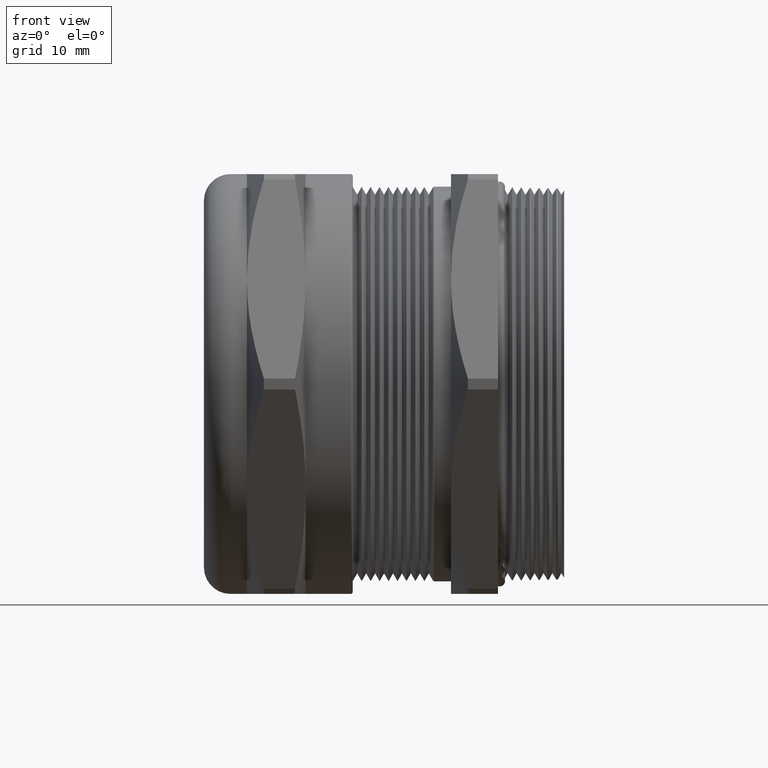
[diagram: clean part render]
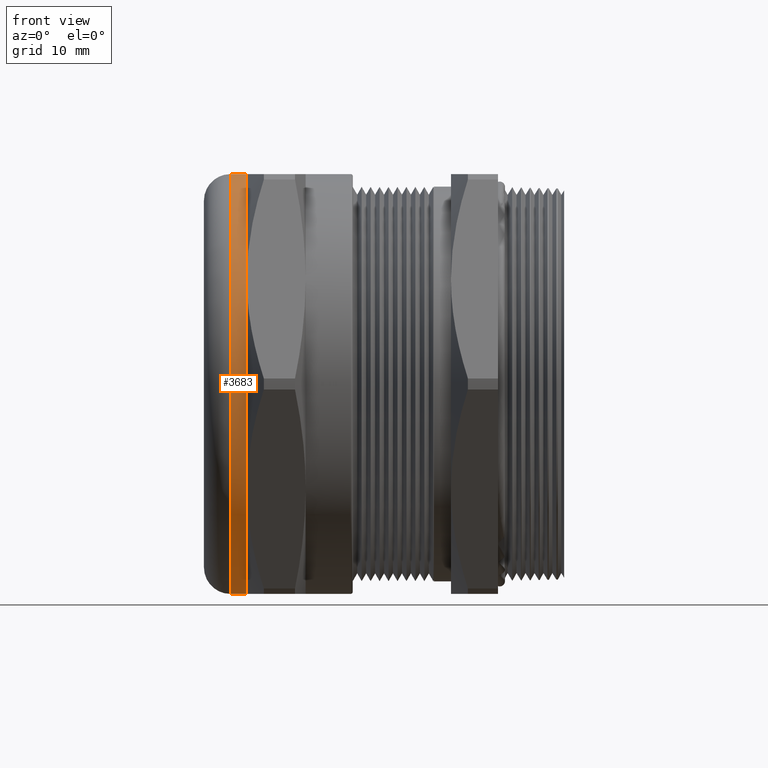
[diagram: same view with one face highlighted and labeled with its STEP entity id]
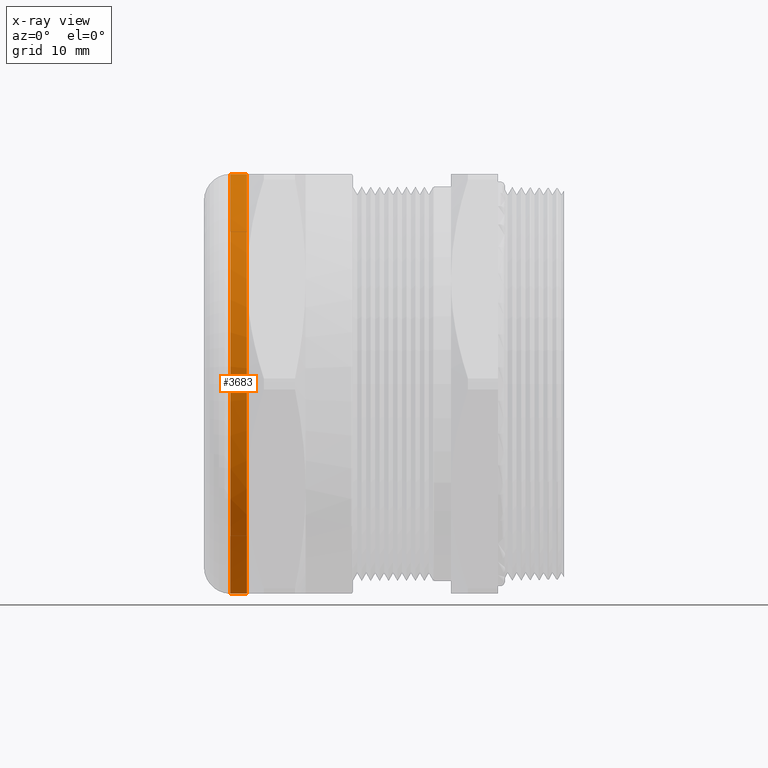
[diagram: x-ray of the same camera — body ghosted, the highlighted face saturated]
A machine part, front view. The second image highlights one B-rep face of the part: STEP entity #3683.
The next image is the same camera in x-ray: the body ghosted, the highlighted face saturated — about 0% of this face is hidden behind the body in this view.
In plain terms, the highlighted cylindrical surface (partial cylindrical patch) has radius 25.019 mm, axis along (-1, 0, 0).
Its self-contained STEP definition (entity closure, byte-faithful):
#1106 = CARTESIAN_POINT ( 'NONE',  ( -0.6434999999999998500, 0.0000000000000000000, 0.9850000000000001000 ) ) ;
#1153 = CARTESIAN_POINT ( 'NONE',  ( -0.6434999999999998500, 0.0000000000000000000, -0.9849999999999997600 ) ) ;
#1207 = DIRECTION ( 'NONE',  ( -1.000000000000000000, 0.0000000000000000000, 0.0000000000000000000 ) ) ;
#1208 = VECTOR ( 'NONE', #1207, 39.37007874015748100 ) ;
#1209 = CARTESIAN_POINT ( 'NONE',  ( -2.719493435091831800, 0.0000000000000000000, 0.9849999999999999900 ) ) ;
#1210 = LINE ( 'NONE', #1209, #1208 ) ;
#1211 = DIRECTION ( 'NONE',  ( -1.000000000000000000, 0.0000000000000000000, 0.0000000000000000000 ) ) ;
#1212 = VECTOR ( 'NONE', #1211, 39.37007874015748100 ) ;
#1213 = CARTESIAN_POINT ( 'NONE',  ( -2.719493435091831800, 1.206277097160143100E-016, -0.9849999999999999900 ) ) ;
#1214 = LINE ( 'NONE', #1213, #1212 ) ;
#1286 = DIRECTION ( 'NONE',  ( 0.0000000000000000000, 0.0000000000000000000, 1.000000000000000000 ) ) ;
#1287 = DIRECTION ( 'NONE',  ( -1.000000000000000000, 0.0000000000000000000, 0.0000000000000000000 ) ) ;
#1288 = AXIS2_PLACEMENT_3D ( 'NONE', #1296, #1287, #1286 ) ;
#1290 = CYLINDRICAL_SURFACE ( 'NONE', #1288, 0.9849999999999999900 ) ;
#1291 = FACE_OUTER_BOUND ( 'NONE', #3681, .T. ) ;
#1296 = CARTESIAN_POINT ( 'NONE',  ( -2.719493435091831800, 0.0000000000000000000, 0.0000000000000000000 ) ) ;
#1310 = CIRCLE ( 'NONE', #1373, 0.9849999999999999900 ) ;
#1349 = DIRECTION ( 'NONE',  ( 0.0000000000000000000, 0.0000000000000000000, 1.000000000000000000 ) ) ;
#1350 = DIRECTION ( 'NONE',  ( -1.000000000000000000, 0.0000000000000000000, 0.0000000000000000000 ) ) ;
#1351 = CARTESIAN_POINT ( 'NONE',  ( -0.6434999999999998500, 0.0000000000000000000, 0.0000000000000000000 ) ) ;
#1352 = AXIS2_PLACEMENT_3D ( 'NONE', #1351, #1350, #1349 ) ;
#1353 = CIRCLE ( 'NONE', #1352, 0.9849999999999999900 ) ;
#1354 = DIRECTION ( 'NONE',  ( 0.0000000000000000000, 0.0000000000000000000, 1.000000000000000000 ) ) ;
#1355 = DIRECTION ( 'NONE',  ( -1.000000000000000000, 0.0000000000000000000, 0.0000000000000000000 ) ) ;
#1356 = CARTESIAN_POINT ( 'NONE',  ( -0.6434999999999998500, 0.0000000000000000000, 0.0000000000000000000 ) ) ;
#1357 = AXIS2_PLACEMENT_3D ( 'NONE', #1356, #1355, #1354 ) ;
#1362 = CIRCLE ( 'NONE', #1357, 0.9849999999999999900 ) ;
#1365 = DIRECTION ( 'NONE',  ( 0.0000000000000000000, 0.0000000000000000000, 1.000000000000000000 ) ) ;
#1366 = DIRECTION ( 'NONE',  ( -1.000000000000000000, 0.0000000000000000000, 0.0000000000000000000 ) ) ;
#1367 = CARTESIAN_POINT ( 'NONE',  ( -0.6434999999999998500, 0.0000000000000000000, 0.0000000000000000000 ) ) ;
#1368 = AXIS2_PLACEMENT_3D ( 'NONE', #1367, #1366, #1365 ) ;
#1369 = CIRCLE ( 'NONE', #1368, 0.9849999999999999900 ) ;
#1370 = DIRECTION ( 'NONE',  ( 0.0000000000000000000, 0.0000000000000000000, -1.000000000000000000 ) ) ;
#1371 = DIRECTION ( 'NONE',  ( 1.000000000000000000, 0.0000000000000000000, 0.0000000000000000000 ) ) ;
#1372 = CARTESIAN_POINT ( 'NONE',  ( -0.7207999999999998900, 0.0000000000000000000, 0.0000000000000000000 ) ) ;
#1373 = AXIS2_PLACEMENT_3D ( 'NONE', #1372, #1371, #1370 ) ;
#1760 = CARTESIAN_POINT ( 'NONE',  ( -0.7207999999999998900, 0.0000000000000000000, 0.9849999999999999900 ) ) ;
#1766 = CARTESIAN_POINT ( 'NONE',  ( -0.7207999999999998900, 1.206277097160143100E-016, -0.9849999999999999900 ) ) ;
#2349 = CARTESIAN_POINT ( 'NONE',  ( -0.6434999999999998500, -0.8530350227276722900, -0.4925000000000004400 ) ) ;
#2452 = CARTESIAN_POINT ( 'NONE',  ( -0.6434999999999998500, -0.8530350227276718400, 0.4925000000000001600 ) ) ;
#3329 = VERTEX_POINT ( 'NONE', #1106 ) ;
#3385 = VERTEX_POINT ( 'NONE', #1153 ) ;
#3387 = EDGE_CURVE ( 'NONE', #3385, #3949, #1214, .T. ) ;
#3390 = EDGE_CURVE ( 'NONE', #3329, #3953, #1210, .T. ) ;
#3679 = ORIENTED_EDGE ( 'NONE', *, *, #3719, .T. ) ;
#3681 = EDGE_LOOP ( 'NONE', ( #3684, #3679, #3718, #3714, #3711, #3715 ) ) ;
#3683 = ADVANCED_FACE ( 'NONE', ( #1291 ), #1290, .T. ) ;
#3684 = ORIENTED_EDGE ( 'NONE', *, *, #3387, .F. ) ;
#3711 = ORIENTED_EDGE ( 'NONE', *, *, #3390, .T. ) ;
#3712 = EDGE_CURVE ( 'NONE', #3953, #3949, #1310, .T. ) ;
#3713 = EDGE_CURVE ( 'NONE', #4337, #3329, #1369, .T. ) ;
#3714 = ORIENTED_EDGE ( 'NONE', *, *, #3713, .T. ) ;
#3715 = ORIENTED_EDGE ( 'NONE', *, *, #3712, .T. ) ;
#3717 = EDGE_CURVE ( 'NONE', #4311, #4337, #1362, .T. ) ;
#3718 = ORIENTED_EDGE ( 'NONE', *, *, #3717, .T. ) ;
#3719 = EDGE_CURVE ( 'NONE', #3385, #4311, #1353, .T. ) ;
#3949 = VERTEX_POINT ( 'NONE', #1766 ) ;
#3953 = VERTEX_POINT ( 'NONE', #1760 ) ;
#4311 = VERTEX_POINT ( 'NONE', #2349 ) ;
#4337 = VERTEX_POINT ( 'NONE', #2452 ) ;